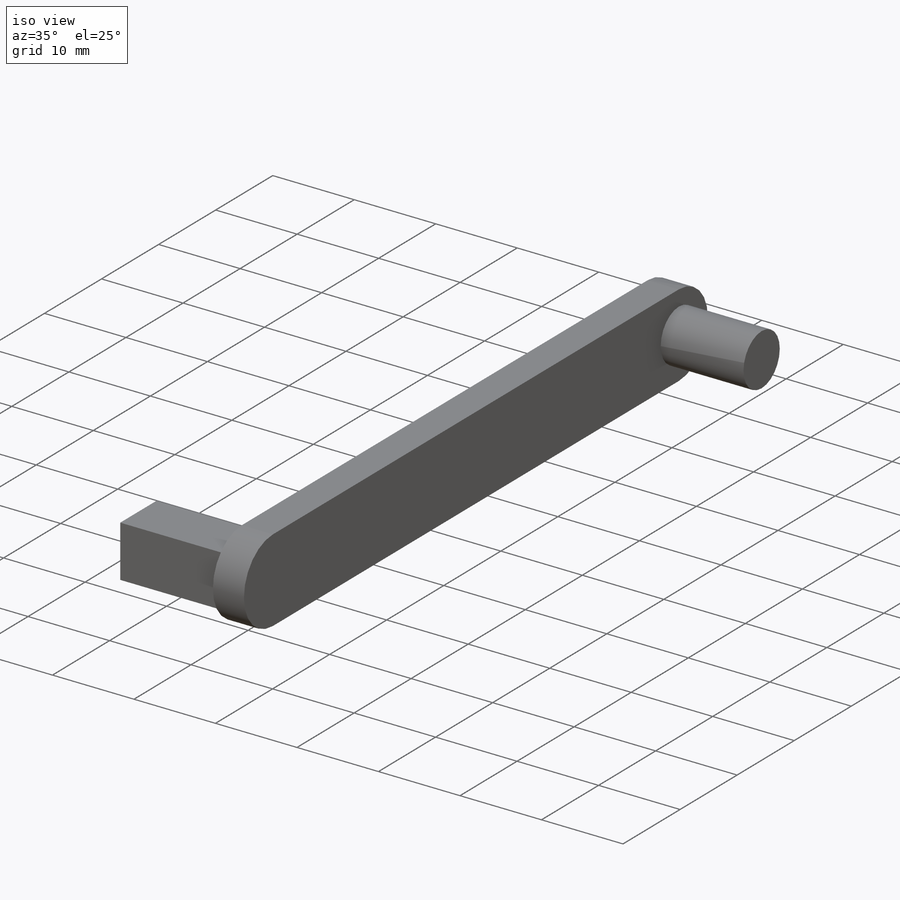
[diagram: iso view]
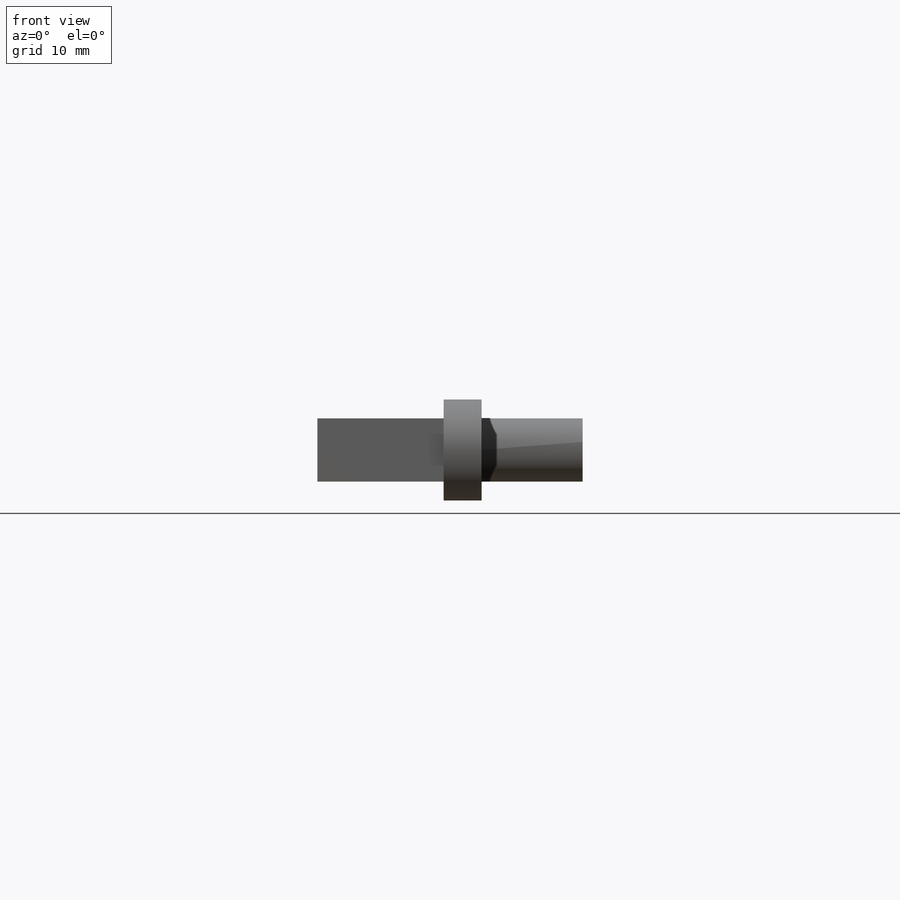
[diagram: front view]
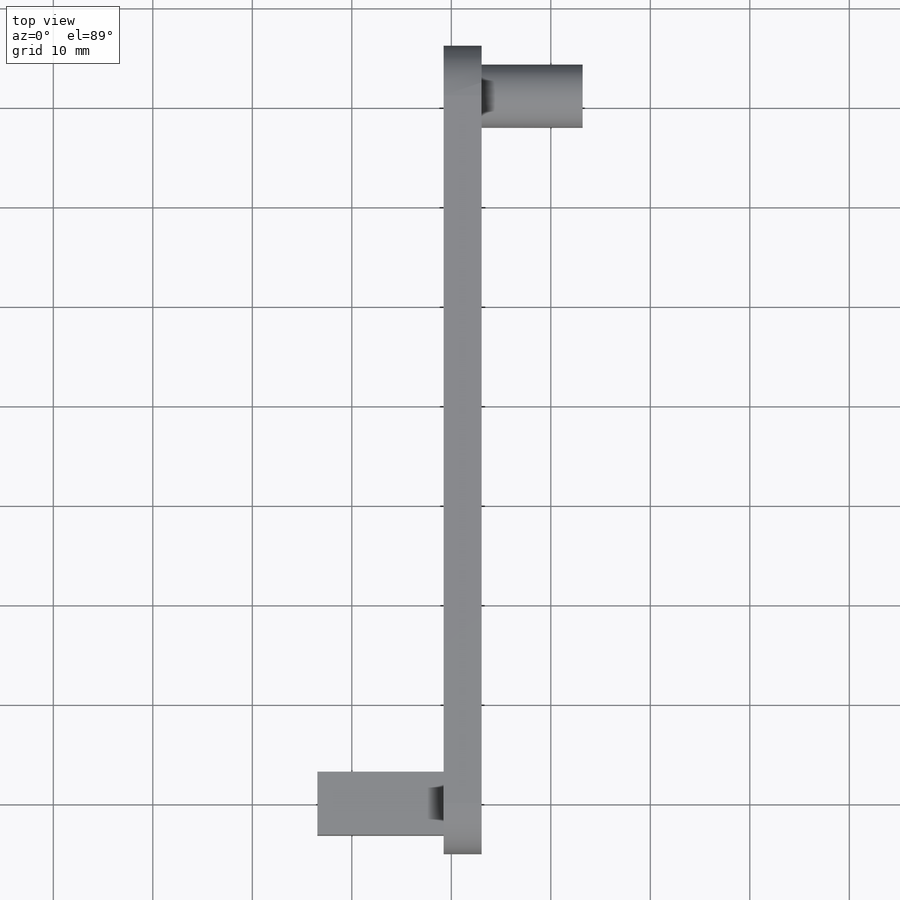
[diagram: top view]
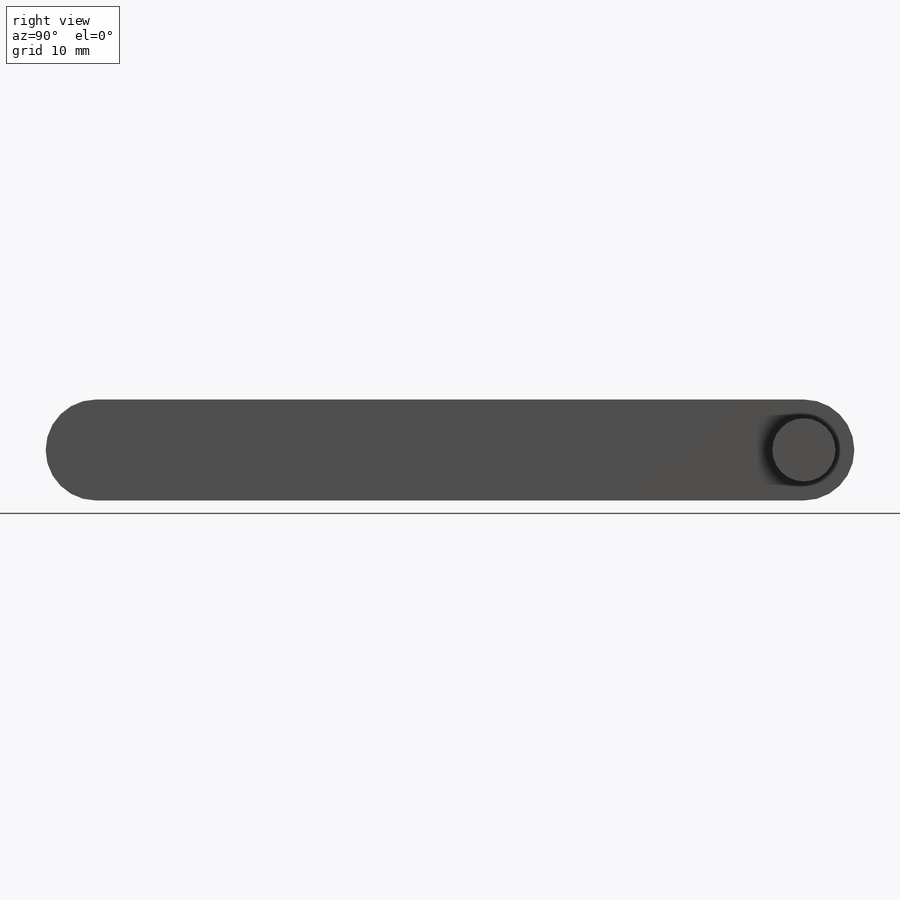
[diagram: right view]
SOLIDWORKS PART (.sldprt)
format: sldprt  version: not decoded by parser v0  size: 147,968 bytes
history: native  units: mm
features: sketch x4, extrude x4, material x1 (+13 scaffold rows collapsed)
feature tree (22):
  scaffold x13  (default folders/planes/origin — collapsed)
  material  "Material <not specified>"
  sketch  "Sketch1"  dims[D1=7.62mm]
  extrude  "Boss-Extrude1"  Depth=3.048mm
  sketch  "Sketch4"  dims[c1.D2=5.08mm c1.D3=5.08mm c2.D2=5.08mm c2.D1=71.12mm]
  extrude  "Boss-Extrude5"  Depth=3.81mm
  sketch  "Sketch5"  dims[D1=6.35mm]
  extrude  "Boss-Extrude6"  Depth=10.16mm
  sketch  "Sketch6"  dims[D1=6.35mm]
  extrude  "Boss-Extrude7"  Depth=12.7mm
decode coverage: 8 of 8 modeling features carry decoded parameters
note: suppression state not decoded; provenance and decode notes live in map.json
